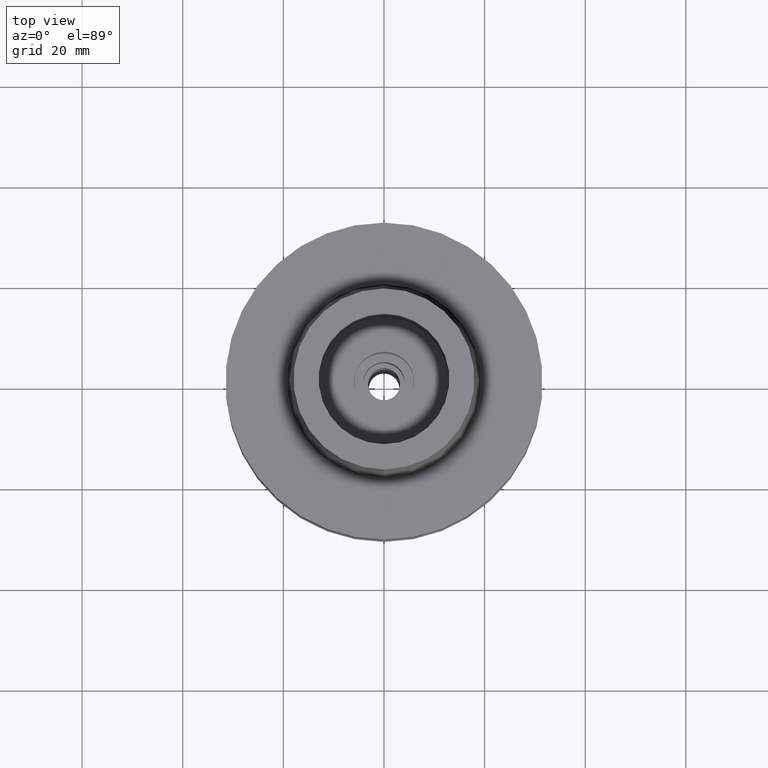
[diagram: clean part render]
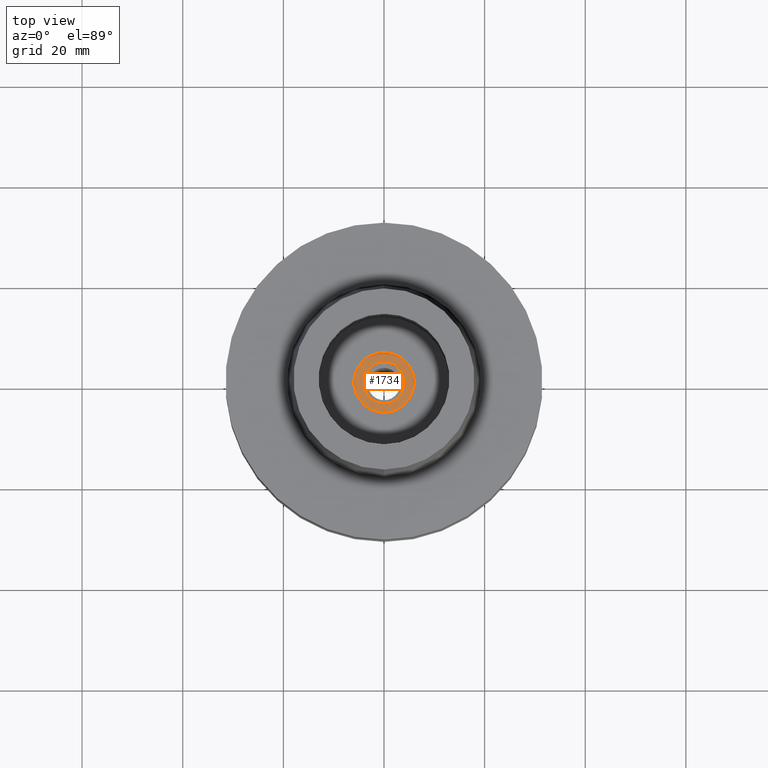
[diagram: same view with one face highlighted and labeled with its STEP entity id]
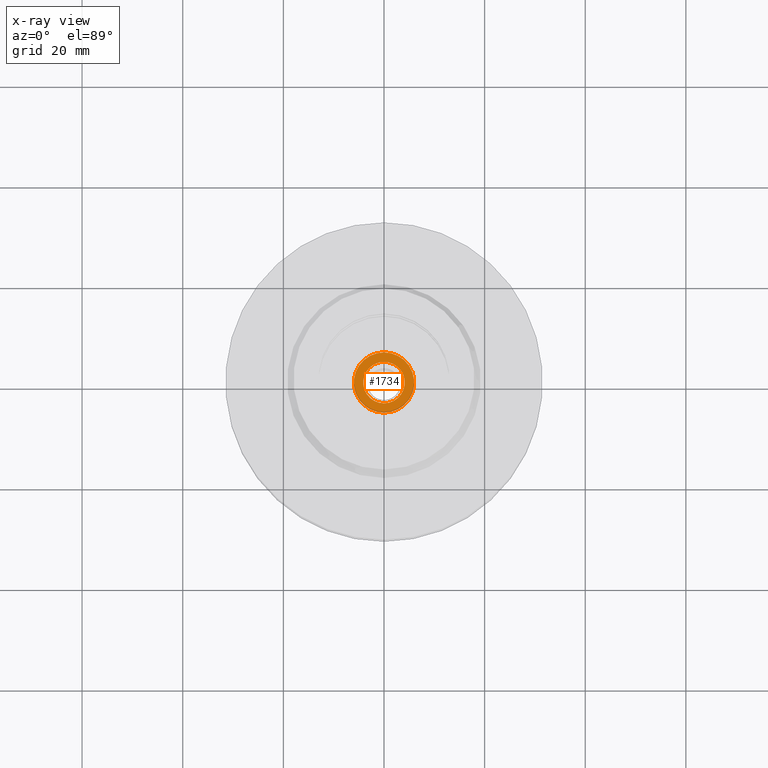
[diagram: x-ray of the same camera — body ghosted, the highlighted face saturated]
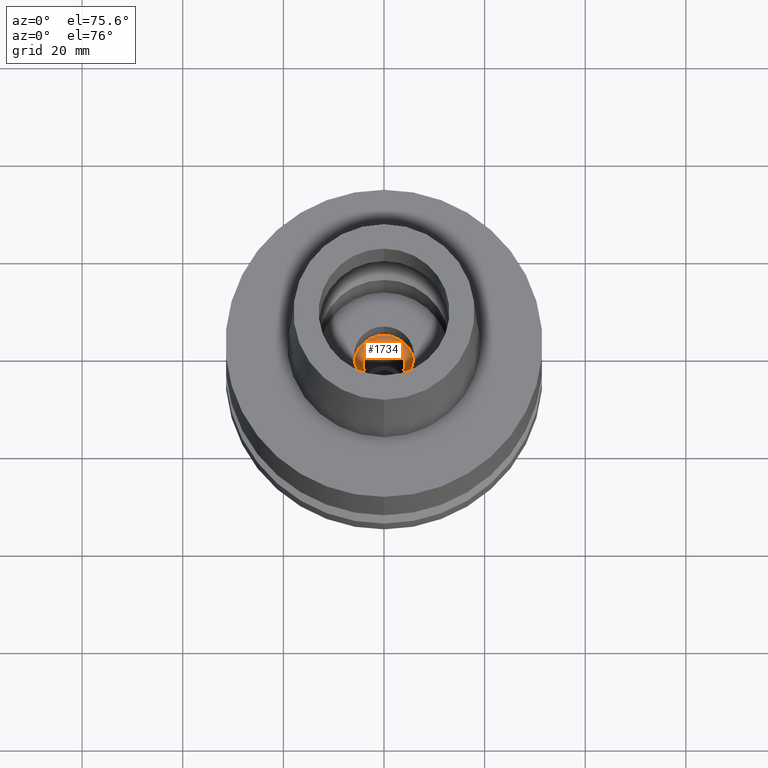
[diagram: same view with one face highlighted and labeled with its STEP entity id]
A machine part, top view. The second image highlights one B-rep face of the part: STEP entity #1734.
The next image is the same camera in x-ray: the body ghosted, the highlighted face saturated — about 0% of this face is hidden behind the body in this view.
A second angle (auxiliary view) of the same face is appended — the face is thin or edge-on in the first view.
In plain terms, the highlighted planar face has unit normal (0, 0, 1).
Its self-contained STEP definition (entity closure, byte-faithful):
#18 = DIRECTION ( 'NONE',  ( 0.0000000000000000000, 0.0000000000000000000, 1.000000000000000000 ) ) ;
#74 = CIRCLE ( 'NONE', #2738, 6.000000000000000000 ) ;
#121 = EDGE_CURVE ( 'NONE', #326, #2520, #399, .T. ) ;
#174 = CARTESIAN_POINT ( 'NONE',  ( 0.0000000000000000000, -6.000000000000000000, -16.94999999999999929 ) ) ;
#311 = CIRCLE ( 'NONE', #527, 6.000000000000000000 ) ;
#326 = VERTEX_POINT ( 'NONE', #1997 ) ;
#395 = CARTESIAN_POINT ( 'NONE',  ( 0.0000000000000000000, 0.0000000000000000000, -16.94999999999999929 ) ) ;
#399 = CIRCLE ( 'NONE', #2335, 4.125000000000000000 ) ;
#527 = AXIS2_PLACEMENT_3D ( 'NONE', #1595, #951, #1827 ) ;
#547 = DIRECTION ( 'NONE',  ( 0.0000000000000000000, 0.0000000000000000000, -1.000000000000000000 ) ) ;
#650 = CARTESIAN_POINT ( 'NONE',  ( 0.0000000000000000000, 4.125000000000000000, -16.94999999999999929 ) ) ;
#769 = CARTESIAN_POINT ( 'NONE',  ( 0.0000000000000000000, 6.000000000000000000, -16.94999999999999929 ) ) ;
#951 = DIRECTION ( 'NONE',  ( 0.0000000000000000000, 0.0000000000000000000, -1.000000000000000000 ) ) ;
#1053 = CIRCLE ( 'NONE', #1739, 4.125000000000000000 ) ;
#1060 = ORIENTED_EDGE ( 'NONE', *, *, #1963, .F. ) ;
#1086 = CARTESIAN_POINT ( 'NONE',  ( 0.0000000000000000000, 0.0000000000000000000, -16.94999999999999929 ) ) ;
#1161 = ORIENTED_EDGE ( 'NONE', *, *, #1543, .F. ) ;
#1326 = FACE_OUTER_BOUND ( 'NONE', #2475, .T. ) ;
#1392 = ORIENTED_EDGE ( 'NONE', *, *, #2079, .F. ) ;
#1491 = DIRECTION ( 'NONE',  ( 0.0000000000000000000, 1.000000000000000000, 0.0000000000000000000 ) ) ;
#1498 = CARTESIAN_POINT ( 'NONE',  ( 0.0000000000000000000, 0.0000000000000000000, -16.94999999999999929 ) ) ;
#1502 = ORIENTED_EDGE ( 'NONE', *, *, #121, .F. ) ;
#1543 = EDGE_CURVE ( 'NONE', #2520, #326, #1053, .T. ) ;
#1559 = VERTEX_POINT ( 'NONE', #174 ) ;
#1595 = CARTESIAN_POINT ( 'NONE',  ( 0.0000000000000000000, 0.0000000000000000000, -16.94999999999999929 ) ) ;
#1668 = AXIS2_PLACEMENT_3D ( 'NONE', #1086, #2433, #2402 ) ;
#1734 = ADVANCED_FACE ( 'NONE', ( #1326, #1765 ), #2615, .T. ) ;
#1739 = AXIS2_PLACEMENT_3D ( 'NONE', #1942, #1972, #1491 ) ;
#1765 = FACE_BOUND ( 'NONE', #2007, .T. ) ;
#1827 = DIRECTION ( 'NONE',  ( 0.0000000000000000000, -1.000000000000000000, 0.0000000000000000000 ) ) ;
#1942 = CARTESIAN_POINT ( 'NONE',  ( 0.0000000000000000000, 0.0000000000000000000, -16.94999999999999929 ) ) ;
#1963 = EDGE_CURVE ( 'NONE', #1559, #2489, #311, .T. ) ;
#1972 = DIRECTION ( 'NONE',  ( 0.0000000000000000000, 0.0000000000000000000, 1.000000000000000000 ) ) ;
#1997 = CARTESIAN_POINT ( 'NONE',  ( 0.0000000000000000000, -4.125000000000000000, -16.94999999999999929 ) ) ;
#2007 = EDGE_LOOP ( 'NONE', ( #1161, #1502 ) ) ;
#2079 = EDGE_CURVE ( 'NONE', #2489, #1559, #74, .T. ) ;
#2127 = DIRECTION ( 'NONE',  ( 0.0000000000000000000, 1.000000000000000000, 0.0000000000000000000 ) ) ;
#2335 = AXIS2_PLACEMENT_3D ( 'NONE', #1498, #18, #2365 ) ;
#2365 = DIRECTION ( 'NONE',  ( 0.0000000000000000000, -1.000000000000000000, 0.0000000000000000000 ) ) ;
#2402 = DIRECTION ( 'NONE',  ( 1.000000000000000000, 0.0000000000000000000, 0.0000000000000000000 ) ) ;
#2433 = DIRECTION ( 'NONE',  ( 0.0000000000000000000, 0.0000000000000000000, 1.000000000000000000 ) ) ;
#2475 = EDGE_LOOP ( 'NONE', ( #1392, #1060 ) ) ;
#2489 = VERTEX_POINT ( 'NONE', #769 ) ;
#2520 = VERTEX_POINT ( 'NONE', #650 ) ;
#2615 = PLANE ( 'NONE',  #1668 ) ;
#2738 = AXIS2_PLACEMENT_3D ( 'NONE', #395, #547, #2127 ) ;